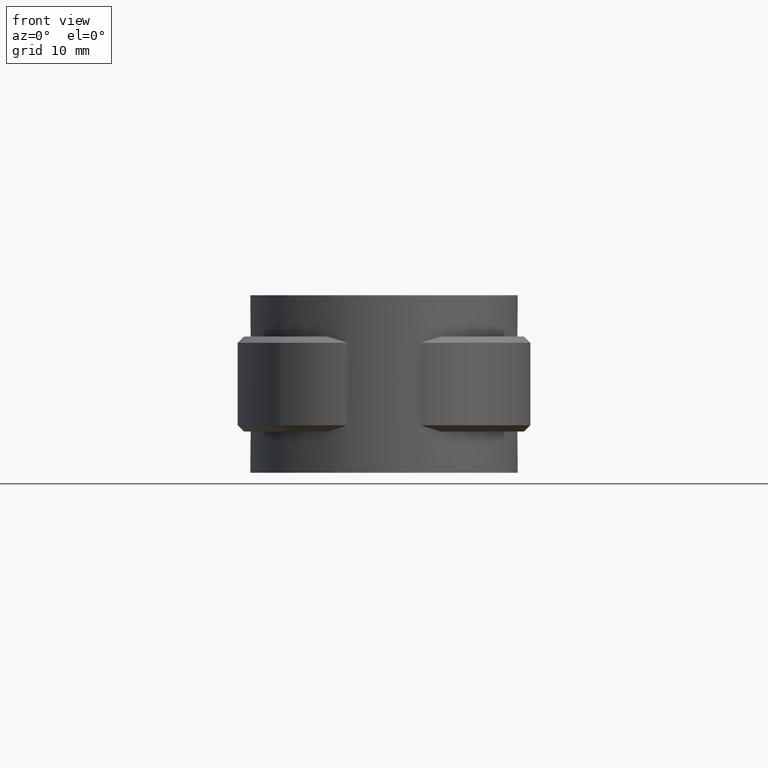
[diagram: clean part render]
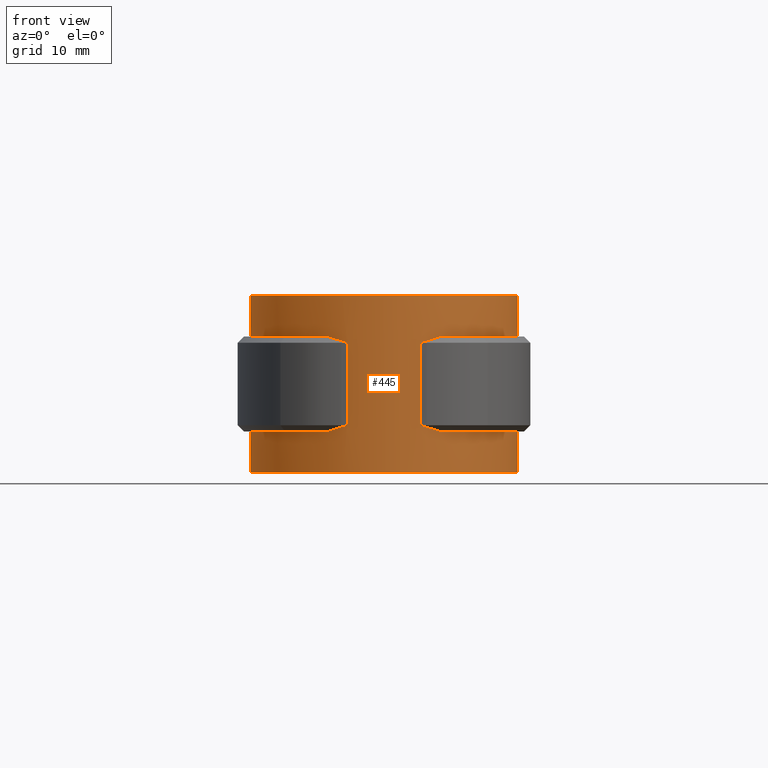
[diagram: same view with one face highlighted and labeled with its STEP entity id]
A machine part, front view. The second image highlights one B-rep face of the part: STEP entity #445.
In plain terms, the highlighted cylindrical surface (partial cylindrical patch) has radius 21.095 mm, axis along (0, 0, -1).
Its self-contained STEP definition (entity closure, byte-faithful):
#445 = ADVANCED_FACE( '', ( #866 ), #867, .T. );
#866 = FACE_OUTER_BOUND( '', #1959, .T. );
#867 = CYLINDRICAL_SURFACE( '', #1960, 21.0950000000000 );
#1959 = EDGE_LOOP( '', ( #4056, #4057, #4058, #4059, #4060, #4061, #4062, #4063, #4064, #4065, #4066, #4067, #4068, #4069, #4070, #4071, #4072, #4073, #4074, #4075 ) );
#1960 = AXIS2_PLACEMENT_3D( '', #4076, #4077, #4078 );
#4056 = ORIENTED_EDGE( '', *, *, #6408, .F. );
#4057 = ORIENTED_EDGE( '', *, *, #6409, .T. );
#4058 = ORIENTED_EDGE( '', *, *, #6410, .T. );
#4059 = ORIENTED_EDGE( '', *, *, #6411, .F. );
#4060 = ORIENTED_EDGE( '', *, *, #6412, .T. );
#4061 = ORIENTED_EDGE( '', *, *, #6413, .T. );
#4062 = ORIENTED_EDGE( '', *, *, #6414, .T. );
#4063 = ORIENTED_EDGE( '', *, *, #6266, .F. );
#4064 = ORIENTED_EDGE( '', *, *, #6256, .T. );
#4065 = ORIENTED_EDGE( '', *, *, #6415, .T. );
#4066 = ORIENTED_EDGE( '', *, *, #6416, .F. );
#4067 = ORIENTED_EDGE( '', *, *, #6417, .T. );
#4068 = ORIENTED_EDGE( '', *, *, #6418, .T. );
#4069 = ORIENTED_EDGE( '', *, *, #6419, .T. );
#4070 = ORIENTED_EDGE( '', *, *, #6420, .T. );
#4071 = ORIENTED_EDGE( '', *, *, #6407, .T. );
#4072 = ORIENTED_EDGE( '', *, *, #6421, .T. );
#4073 = ORIENTED_EDGE( '', *, *, #6422, .T. );
#4074 = ORIENTED_EDGE( '', *, *, #6423, .F. );
#4075 = ORIENTED_EDGE( '', *, *, #6272, .F. );
#4076 = CARTESIAN_POINT( '', ( 0.000000000000000, 0.000000000000000, -26.5000000000000 ) );
#4077 = DIRECTION( '', ( 0.000000000000000, 0.000000000000000, -1.00000000000000 ) );
#4078 = DIRECTION( '', ( -1.00000000000000, 6.07153216591882E-017, 0.000000000000000 ) );
#6256 = EDGE_CURVE( '', #7274, #7272, #7275, .T. );
#6266 = EDGE_CURVE( '', #7274, #7293, #7294, .T. );
#6272 = EDGE_CURVE( '', #7303, #7290, #7305, .T. );
#6407 = EDGE_CURVE( '', #7526, #7532, #7534, .T. );
#6408 = EDGE_CURVE( '', #7535, #7303, #7536, .T. );
#6409 = EDGE_CURVE( '', #7535, #7537, #7538, .F. );
#6410 = EDGE_CURVE( '', #7537, #7539, #7540, .T. );
#6411 = EDGE_CURVE( '', #7541, #7539, #7542, .T. );
#6412 = EDGE_CURVE( '', #7541, #7543, #7544, .F. );
#6413 = EDGE_CURVE( '', #7543, #7545, #7546, .T. );
#6414 = EDGE_CURVE( '', #7545, #7293, #7547, .T. );
#6415 = EDGE_CURVE( '', #7272, #7548, #7549, .T. );
#6416 = EDGE_CURVE( '', #7550, #7548, #7551, .T. );
#6417 = EDGE_CURVE( '', #7550, #7552, #7553, .F. );
#6418 = EDGE_CURVE( '', #7552, #7554, #7555, .F. );
#6419 = EDGE_CURVE( '', #7554, #7556, #7557, .T. );
#6420 = EDGE_CURVE( '', #7556, #7526, #7558, .T. );
#6421 = EDGE_CURVE( '', #7532, #7559, #7560, .T. );
#6422 = EDGE_CURVE( '', #7559, #7561, #7562, .T. );
#6423 = EDGE_CURVE( '', #7290, #7561, #7563, .T. );
#7272 = VERTEX_POINT( '', #9609 );
#7274 = VERTEX_POINT( '', #9612 );
#7275 = CIRCLE( '', #9613, 21.0950000000000 );
#7290 = VERTEX_POINT( '', #9632 );
#7293 = VERTEX_POINT( '', #9637 );
#7294 = LINE( '', #9638, #9639 );
#7303 = VERTEX_POINT( '', #9656 );
#7305 = LINE( '', #9659, #9660 );
#7526 = VERTEX_POINT( '', #10683 );
#7532 = VERTEX_POINT( '', #10691 );
#7534 = B_SPLINE_CURVE_WITH_KNOTS( '', 3, ( #10693, #10694, #10695, #10696 ), .UNSPECIFIED., .F., .F., ( 4, 4 ), ( 0.00449162675373297, 0.00694777175343143 ), .UNSPECIFIED. );
#7535 = VERTEX_POINT( '', #10697 );
#7536 = CIRCLE( '', #10698, 21.0950000000000 );
#7537 = VERTEX_POINT( '', #10699 );
#7538 = B_SPLINE_CURVE_WITH_KNOTS( '', 3, ( #10700, #10701, #10702, #10703 ), .UNSPECIFIED., .F., .F., ( 4, 4 ), ( 0.00449162675373289, 0.00694777175343142 ), .UNSPECIFIED. );
#7539 = VERTEX_POINT( '', #10704 );
#7540 = ELLIPSE( '', #10705, 29.8328350982604, 21.0950000000000 );
#7541 = VERTEX_POINT( '', #10706 );
#7542 = LINE( '', #10707, #10708 );
#7543 = VERTEX_POINT( '', #10709 );
#7544 = ELLIPSE( '', #10710, 29.8328350982604, 21.0950000000000 );
#7545 = VERTEX_POINT( '', #10711 );
#7546 = B_SPLINE_CURVE_WITH_KNOTS( '', 3, ( #10712, #10713, #10714, #10715 ), .UNSPECIFIED., .F., .F., ( 4, 4 ), ( 0.00449162675373289, 0.00694777175343141 ), .UNSPECIFIED. );
#7547 = CIRCLE( '', #10716, 21.0950000000000 );
#7548 = VERTEX_POINT( '', #10717 );
#7549 = LINE( '', #10718, #10719 );
#7550 = VERTEX_POINT( '', #10720 );
#7551 = CIRCLE( '', #10721, 21.0950000000000 );
#7552 = VERTEX_POINT( '', #10722 );
#7553 = B_SPLINE_CURVE_WITH_KNOTS( '', 3, ( #10723, #10724, #10725, #10726 ), .UNSPECIFIED., .F., .F., ( 4, 4 ), ( 0.00449162675373298, 0.00694777175343144 ), .UNSPECIFIED. );
#7554 = VERTEX_POINT( '', #10727 );
#7555 = ELLIPSE( '', #10728, 29.8328350982605, 21.0950000000000 );
#7556 = VERTEX_POINT( '', #10729 );
#7557 = LINE( '', #10730, #10731 );
#7558 = ELLIPSE( '', #10732, 29.8328350982604, 21.0950000000000 );
#7559 = VERTEX_POINT( '', #10733 );
#7560 = CIRCLE( '', #10734, 21.0950000000000 );
#7561 = VERTEX_POINT( '', #10735 );
#7562 = LINE( '', #10736, #10737 );
#7563 = CIRCLE( '', #10738, 21.0950000000000 );
#9609 = CARTESIAN_POINT( '', ( 6.10000000000001, 20.1937867919813, -26.5000000000000 ) );
#9612 = CARTESIAN_POINT( '', ( -6.09999999999999, 20.1937867919813, -26.5000000000000 ) );
#9613 = AXIS2_PLACEMENT_3D( '', #12473, #12474, #12475 );
#9632 = CARTESIAN_POINT( '', ( -6.09999999999999, 20.1937867919813, 1.50000000000000 ) );
#9637 = CARTESIAN_POINT( '', ( -6.10000000000000, 20.1937867919813, -20.0000000000000 ) );
#9638 = CARTESIAN_POINT( '', ( -6.09999999999999, 20.1937867919813, -26.5000000000000 ) );
#9639 = VECTOR( '', #12491, 1000.00000000000 );
#9656 = CARTESIAN_POINT( '', ( -6.10000000000000, 20.1937867919813, -5.00000000000000 ) );
#9659 = CARTESIAN_POINT( '', ( -6.09999999999999, 20.1937867919813, -26.5000000000000 ) );
#9660 = VECTOR( '', #12495, 1000.00000000000 );
#10683 = CARTESIAN_POINT( '', ( 6.71795541813136, -19.9967022281175, -5.68670222811750 ) );
#10691 = CARTESIAN_POINT( '', ( 8.92070883330816, -19.1159613650828, -5.00000000000000 ) );
#10693 = CARTESIAN_POINT( '', ( 6.71795541813136, -19.9967022281175, -5.68670222811750 ) );
#10694 = CARTESIAN_POINT( '', ( 7.45819609904717, -19.7480160279456, -5.43801602794559 ) );
#10695 = CARTESIAN_POINT( '', ( 8.19225499622917, -19.4559037020116, -5.20735772387863 ) );
#10696 = CARTESIAN_POINT( '', ( 8.92070883330815, -19.1159613650828, -4.99999999999999 ) );
#10697 = CARTESIAN_POINT( '', ( -8.92070883330820, -19.1159613650828, -5.00000000000000 ) );
#10698 = AXIS2_PLACEMENT_3D( '', #12634, #12635, #12636 );
#10699 = CARTESIAN_POINT( '', ( -6.71795541813133, -19.9967022281175, -5.68670222811752 ) );
#10700 = CARTESIAN_POINT( '', ( -6.71795541813133, -19.9967022281175, -5.68670222811751 ) );
#10701 = CARTESIAN_POINT( '', ( -7.45819609904716, -19.7480160279456, -5.43801602794560 ) );
#10702 = CARTESIAN_POINT( '', ( -8.19225499622918, -19.4559037020116, -5.20735772387863 ) );
#10703 = CARTESIAN_POINT( '', ( -8.92070883330819, -19.1159613650828, -4.99999999999999 ) );
#10704 = CARTESIAN_POINT( '', ( -5.70113365919447, -20.3100000000000, -6.00000000000000 ) );
#10705 = AXIS2_PLACEMENT_3D( '', #12637, #12638, #12639 );
#10706 = CARTESIAN_POINT( '', ( -5.70113365919447, -20.3100000000000, -19.0000000000000 ) );
#10707 = CARTESIAN_POINT( '', ( -5.70113365919447, -20.3100000000000, -20.0000000000000 ) );
#10708 = VECTOR( '', #12640, 1000.00000000000 );
#10709 = CARTESIAN_POINT( '', ( -6.71795541813133, -19.9967022281175, -19.3132977718825 ) );
#10710 = AXIS2_PLACEMENT_3D( '', #12641, #12642, #12643 );
#10711 = CARTESIAN_POINT( '', ( -8.92070883330819, -19.1159613650828, -20.0000000000000 ) );
#10712 = CARTESIAN_POINT( '', ( -6.71795541813133, -19.9967022281175, -19.3132977718825 ) );
#10713 = CARTESIAN_POINT( '', ( -7.45819609904716, -19.7480160279456, -19.5619839720544 ) );
#10714 = CARTESIAN_POINT( '', ( -8.19225499622917, -19.4559037020116, -19.7926422761214 ) );
#10715 = CARTESIAN_POINT( '', ( -8.92070883330818, -19.1159613650828, -20.0000000000000 ) );
#10716 = AXIS2_PLACEMENT_3D( '', #12644, #12645, #12646 );
#10717 = CARTESIAN_POINT( '', ( 6.10000000000001, 20.1937867919813, -20.0000000000000 ) );
#10718 = CARTESIAN_POINT( '', ( 6.10000000000001, 20.1937867919813, -26.5000000000000 ) );
#10719 = VECTOR( '', #12647, 1000.00000000000 );
#10720 = CARTESIAN_POINT( '', ( 8.92070883330816, -19.1159613650828, -20.0000000000000 ) );
#10721 = AXIS2_PLACEMENT_3D( '', #12648, #12649, #12650 );
#10722 = CARTESIAN_POINT( '', ( 6.71795541813137, -19.9967022281175, -19.3132977718825 ) );
#10723 = CARTESIAN_POINT( '', ( 6.71795541813136, -19.9967022281175, -19.3132977718825 ) );
#10724 = CARTESIAN_POINT( '', ( 7.45819609904717, -19.7480160279456, -19.5619839720544 ) );
#10725 = CARTESIAN_POINT( '', ( 8.19225499622917, -19.4559037020116, -19.7926422761214 ) );
#10726 = CARTESIAN_POINT( '', ( 8.92070883330815, -19.1159613650828, -20.0000000000000 ) );
#10727 = CARTESIAN_POINT( '', ( 5.70113365919447, -20.3100000000000, -19.0000000000000 ) );
#10728 = AXIS2_PLACEMENT_3D( '', #12651, #12652, #12653 );
#10729 = CARTESIAN_POINT( '', ( 5.70113365919447, -20.3100000000000, -6.00000000000000 ) );
#10730 = CARTESIAN_POINT( '', ( 5.70113365919447, -20.3100000000000, -20.0000000000000 ) );
#10731 = VECTOR( '', #12654, 1000.00000000000 );
#10732 = AXIS2_PLACEMENT_3D( '', #12655, #12656, #12657 );
#10733 = CARTESIAN_POINT( '', ( 6.10000000000001, 20.1937867919813, -5.00000000000000 ) );
#10734 = AXIS2_PLACEMENT_3D( '', #12658, #12659, #12660 );
#10735 = CARTESIAN_POINT( '', ( 6.10000000000001, 20.1937867919813, 1.50000000000000 ) );
#10736 = CARTESIAN_POINT( '', ( 6.10000000000001, 20.1937867919813, -26.5000000000000 ) );
#10737 = VECTOR( '', #12661, 1000.00000000000 );
#10738 = AXIS2_PLACEMENT_3D( '', #12662, #12663, #12664 );
#12473 = CARTESIAN_POINT( '', ( 0.000000000000000, 0.000000000000000, -26.5000000000000 ) );
#12474 = DIRECTION( '', ( 0.000000000000000, 0.000000000000000, 1.00000000000000 ) );
#12475 = DIRECTION( '', ( 1.00000000000000, -6.07153216591882E-017, 0.000000000000000 ) );
#12491 = DIRECTION( '', ( 0.000000000000000, 0.000000000000000, 1.00000000000000 ) );
#12495 = DIRECTION( '', ( 0.000000000000000, 0.000000000000000, 1.00000000000000 ) );
#12634 = CARTESIAN_POINT( '', ( -4.33680868994202E-015, -1.38777878078145E-014, -5.00000000000000 ) );
#12635 = DIRECTION( '', ( 0.000000000000000, 0.000000000000000, -1.00000000000000 ) );
#12636 = DIRECTION( '', ( 1.00000000000000, -2.22044604925031E-016, 0.000000000000000 ) );
#12637 = CARTESIAN_POINT( '', ( 0.000000000000000, 0.000000000000000, 14.3100000000000 ) );
#12638 = DIRECTION( '', ( -3.92523114670943E-017, -0.707106781186547, 0.707106781186548 ) );
#12639 = DIRECTION( '', ( 3.92523114670944E-017, 0.707106781186548, 0.707106781186547 ) );
#12640 = DIRECTION( '', ( 0.000000000000000, 0.000000000000000, 1.00000000000000 ) );
#12641 = CARTESIAN_POINT( '', ( 0.000000000000000, 0.000000000000000, -39.3100000000000 ) );
#12642 = DIRECTION( '', ( 3.92523114670944E-017, 0.707106781186547, 0.707106781186548 ) );
#12643 = DIRECTION( '', ( -3.92523114670944E-017, -0.707106781186548, 0.707106781186547 ) );
#12644 = CARTESIAN_POINT( '', ( -4.33680868994202E-015, -1.38777878078145E-014, -20.0000000000000 ) );
#12645 = DIRECTION( '', ( 0.000000000000000, 0.000000000000000, -1.00000000000000 ) );
#12646 = DIRECTION( '', ( 1.00000000000000, -2.22044604925031E-016, 0.000000000000000 ) );
#12647 = DIRECTION( '', ( 0.000000000000000, 0.000000000000000, 1.00000000000000 ) );
#12648 = CARTESIAN_POINT( '', ( -4.33680868994202E-015, -1.38777878078145E-014, -20.0000000000000 ) );
#12649 = DIRECTION( '', ( 0.000000000000000, 0.000000000000000, 1.00000000000000 ) );
#12650 = DIRECTION( '', ( 1.00000000000000, -2.22044604925031E-016, 0.000000000000000 ) );
#12651 = CARTESIAN_POINT( '', ( 0.000000000000000, 0.000000000000000, -39.3100000000000 ) );
#12652 = DIRECTION( '', ( 3.92523114670944E-017, 0.707106781186548, 0.707106781186547 ) );
#12653 = DIRECTION( '', ( -3.92523114670944E-017, -0.707106781186547, 0.707106781186548 ) );
#12654 = DIRECTION( '', ( 0.000000000000000, 0.000000000000000, 1.00000000000000 ) );
#12655 = CARTESIAN_POINT( '', ( 0.000000000000000, 0.000000000000000, 14.3100000000000 ) );
#12656 = DIRECTION( '', ( -3.92523114670943E-017, -0.707106781186547, 0.707106781186548 ) );
#12657 = DIRECTION( '', ( 3.92523114670944E-017, 0.707106781186548, 0.707106781186547 ) );
#12658 = CARTESIAN_POINT( '', ( -4.33680868994202E-015, -1.38777878078145E-014, -5.00000000000000 ) );
#12659 = DIRECTION( '', ( 0.000000000000000, 0.000000000000000, 1.00000000000000 ) );
#12660 = DIRECTION( '', ( 1.00000000000000, -2.22044604925031E-016, 0.000000000000000 ) );
#12661 = DIRECTION( '', ( 0.000000000000000, 0.000000000000000, 1.00000000000000 ) );
#12662 = CARTESIAN_POINT( '', ( 0.000000000000000, 0.000000000000000, 1.50000000000000 ) );
#12663 = DIRECTION( '', ( 0.000000000000000, 0.000000000000000, 1.00000000000000 ) );
#12664 = DIRECTION( '', ( 1.00000000000000, -6.07153216591882E-017, 0.000000000000000 ) );